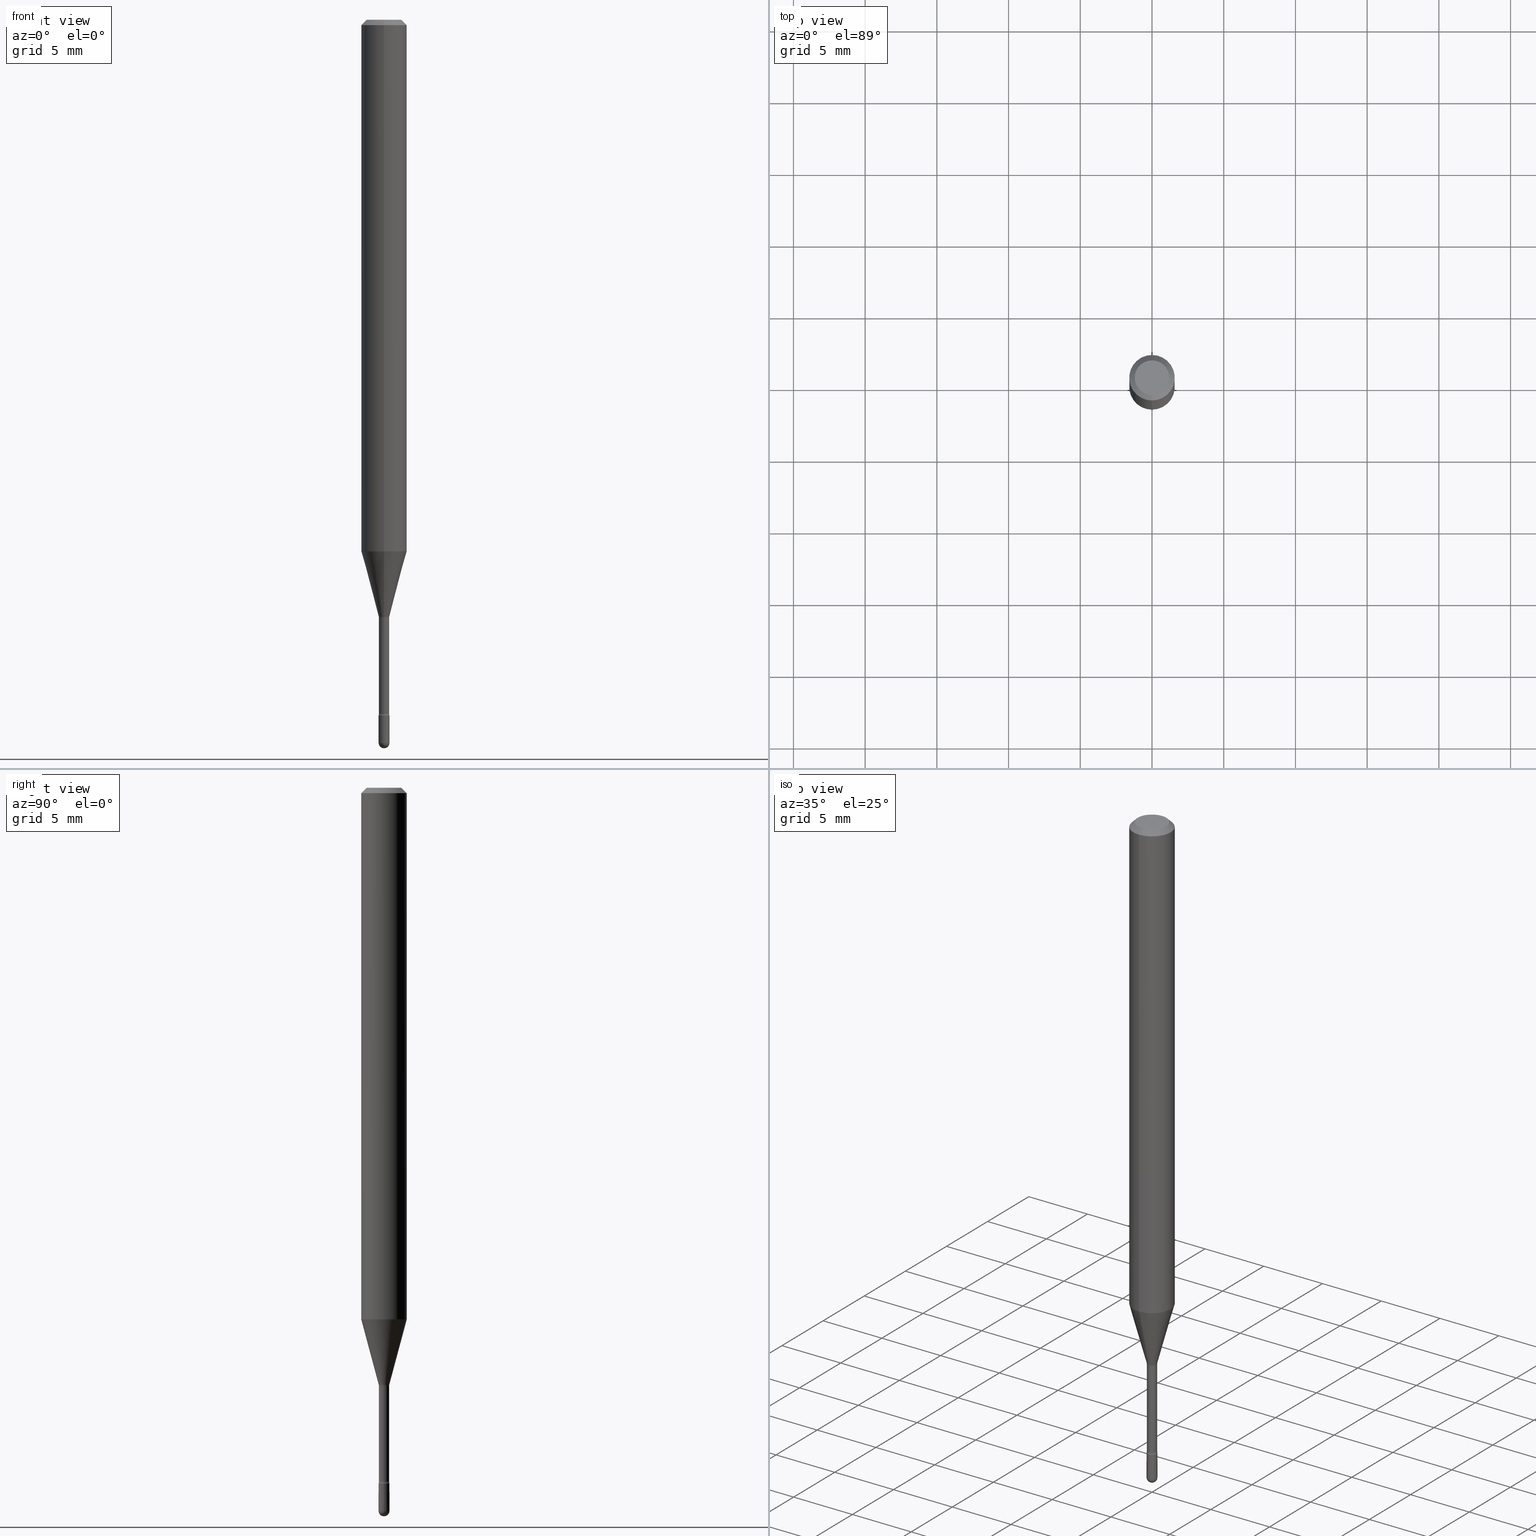
[diagram: canonical four-view strip — front | top / right | iso, engineering-drawing reading convention]
A machine part, canonical four-view strip (front | top / right | iso — engineering-drawing reading convention). The complete STEP part file that produces these views, byte-faithful:
ISO-10303-21;
HEADER;
FILE_DESCRIPTION (( 'STEP AP203' ),
    '1' );
FILE_NAME ('01615.STEP',
    '2024-04-09T20:09:42',
    ( '' ),
    ( '' ),
    'SwSTEP 2.0',
    'SolidWorks 2023',
    '' );
FILE_SCHEMA (( 'CONFIG_CONTROL_DESIGN' ));
ENDSEC;

DATA;
#1 = CARTESIAN_POINT ( 'NONE',  ( -1.169113584055446105E-44, 1.669184350826100908E-30, 4.780733988912460139E-16 ) ) ;
#2 = CARTESIAN_POINT ( 'NONE',  ( -1.047444401652473691E-16, -0.01500000000000668680, -1.910000000000000142 ) ) ;
#3 = DIRECTION ( 'NONE',  ( -2.445474320287489972E-29, 3.491473442334732541E-15, 1.000000000000000000 ) ) ;
#4 = DIRECTION ( 'NONE',  ( -2.445474320287489972E-29, 3.491473442334732541E-15, 1.000000000000000000 ) ) ;
#5 = ORIENTED_EDGE ( 'NONE', *, *, #413, .T. ) ;
#6 = CARTESIAN_POINT ( 'NONE',  ( 4.658330447976158571E-29, -6.650861294217740210E-15, -1.904882383367230370 ) ) ;
#7 = ORIENTED_EDGE ( 'NONE', *, *, #541, .T. ) ;
#8 = CARTESIAN_POINT ( 'NONE',  ( 1.047444401653407012E-16, 0.01499999999999333117, -1.910000000000000142 ) ) ;
#9 = AXIS2_PLACEMENT_3D ( 'NONE', #222, #393, #125 ) ;
#10 = DIRECTION ( 'NONE',  ( 1.000000000000000000, -6.982962677686265922E-15, 4.883557194083112340E-29 ) ) ;
#11 = CARTESIAN_POINT ( 'NONE',  ( 4.364351673553919652E-16, 0.06249999999999995143, -0.01500000000000030129 ) ) ;
#12 = DIRECTION ( 'NONE',  ( -2.445468806185136597E-29, 3.491481338843145583E-15, 1.000000000000000000 ) ) ;
#13 = CARTESIAN_POINT ( 'NONE',  ( 4.854255580277496997E-29, -6.930590457603645269E-15, -1.985000000000000320 ) ) ;
#14 = DIRECTION ( 'NONE',  ( -6.982962677686265922E-15, -1.000000000000000000, 3.491473442334735302E-15 ) ) ;
#15 = EDGE_CURVE ( 'NONE', #54, #159, #213, .T. ) ;
#16 = DIRECTION ( 'NONE',  ( -6.982962677686265922E-15, -1.000000000000000000, 3.491473442334732146E-15 ) ) ;
#17 = CONICAL_SURFACE ( 'NONE', #324, 0.06250000000000000000, 0.7853981633974483900 ) ;
#18 = DIRECTION ( 'NONE',  ( -6.982962677686265922E-15, -1.000000000000000000, 0.000000000000000000 ) ) ;
#19 = LINE ( 'NONE', #356, #322 ) ;
#20 = CARTESIAN_POINT ( 'NONE',  ( 4.015407177302259338E-29, -5.732911363413114048E-15, -1.641974787463811314 ) ) ;
#21 =( CONVERSION_BASED_UNIT ( 'INCH', #108 ) LENGTH_UNIT ( ) NAMED_UNIT ( #25 ) );
#22 = CARTESIAN_POINT ( 'NONE',  ( 0.01499999999999999944, -6.773473797355702060E-15, -1.910000000000000142 ) ) ;
#23 = ORIENTED_EDGE ( 'NONE', *, *, #314, .T. ) ;
#24 = EDGE_LOOP ( 'NONE', ( #172, #381 ) ) ;
#25 = DIMENSIONAL_EXPONENTS ( 1.000000000000000000, 0.000000000000000000, 0.000000000000000000, 0.000000000000000000, 0.000000000000000000, 0.000000000000000000, 0.000000000000000000 ) ;
#26 = CARTESIAN_POINT ( 'NONE',  ( 4.005913147376267210E-29, -5.719356466077926912E-15, -1.638092501787273614 ) ) ;
#27 = CIRCLE ( 'NONE', #438, 0.01409999999999999448 ) ;
#28 = CARTESIAN_POINT ( 'NONE',  ( 3.840629472727447874E-16, 0.04749999999999999362, -2.485923956665947867E-16 ) ) ;
#29 = PERSON_AND_ORGANIZATION ( #419, #376 ) ;
#30 = EDGE_CURVE ( 'NONE', #385, #559, #109, .T. ) ;
#31 = ORIENTED_EDGE ( 'NONE', *, *, #502, .T. ) ;
#32 = APPLICATION_PROTOCOL_DEFINITION ( 'international standard', 'config_control_design', 1994, #481 ) ;
#33 = CIRCLE ( 'NONE', #165, 0.01499999999999999944 ) ;
#34 = CIRCLE ( 'NONE', #61, 0.06250000000000000000 ) ;
#35 = DIRECTION ( 'NONE',  ( -6.982962677686265922E-15, -1.000000000000000000, 3.491473442334732146E-15 ) ) ;
#36 = COORDINATED_UNIVERSAL_TIME_OFFSET ( 5, 0, .BEHIND. ) ;
#37 = CARTESIAN_POINT ( 'NONE',  ( 4.854255580277496436E-29, -6.930590457603643692E-15, -1.985000000000000098 ) ) ;
#38 = CC_DESIGN_DATE_AND_TIME_ASSIGNMENT ( #422, #332, ( #130 ) ) ;
#39 = COORDINATED_UNIVERSAL_TIME_OFFSET ( 5, 0, .BEHIND. ) ;
#40 = DATE_TIME_ROLE ( 'creation_date' ) ;
#41 = CIRCLE ( 'NONE', #146, 0.01499999999999998730 ) ;
#42 = EDGE_LOOP ( 'NONE', ( #468, #521, #114, #428 ) ) ;
#43 = ADVANCED_FACE ( 'NONE', ( #188 ), #260, .T. ) ;
#44 = EDGE_LOOP ( 'NONE', ( #437, #505, #253, #210 ) ) ;
#45 = DIRECTION ( 'NONE',  ( 1.000000000000000000, -6.982962677686268288E-15, 0.000000000000000000 ) ) ;
#46 = FACE_OUTER_BOUND ( 'NONE', #84, .T. ) ;
#47 = ORIENTED_EDGE ( 'NONE', *, *, #142, .T. ) ;
#48 = ORIENTED_EDGE ( 'NONE', *, *, #195, .F. ) ;
#49 = VECTOR ( 'NONE', #460, 39.37007874015748143 ) ;
#50 = TOROIDAL_SURFACE ( 'NONE', #459, 0.02910000000000003903, 0.01500000000000003934 ) ;
#51 = ADVANCED_FACE ( 'NONE', ( #400 ), #128, .T. ) ;
#52 = LINE ( 'NONE', #467, #352 ) ;
#53 = VECTOR ( 'NONE', #201, 39.37007874015748854 ) ;
#54 = VERTEX_POINT ( 'NONE', #58 ) ;
#55 = ADVANCED_FACE ( 'NONE', ( #46 ), #401, .T. ) ;
#56 = CARTESIAN_POINT ( 'NONE',  ( 0.01499999999999999771, -1.047444401652939859E-16, 7.314265163693902638E-31 ) ) ;
#57 = CARTESIAN_POINT ( 'NONE',  ( -3.773273898774340269E-16, -0.04749999999999999362, 8.309758135520473464E-17 ) ) ;
#58 = CARTESIAN_POINT ( 'NONE',  ( -1.020288540047823140E-16, -0.01461111260566962632, -1.638092501787273614 ) ) ;
#59 = CIRCLE ( 'NONE', #286, 0.01499999999999998730 ) ;
#60 = CARTESIAN_POINT ( 'NONE',  ( -9.845977375532975906E-17, -0.01410000000000665062, -1.904882383367230370 ) ) ;
#61 = AXIS2_PLACEMENT_3D ( 'NONE', #317, #63, #105 ) ;
#62 = ORIENTED_EDGE ( 'NONE', *, *, #135, .T. ) ;
#63 = DIRECTION ( 'NONE',  ( -2.445474320287489972E-29, 3.491473442334732541E-15, 1.000000000000000000 ) ) ;
#64 = ORIENTED_EDGE ( 'NONE', *, *, #320, .F. ) ;
#65 = DIRECTION ( 'NONE',  ( -2.445474320287489972E-29, 3.491473442334732541E-15, 1.000000000000000000 ) ) ;
#66 = CARTESIAN_POINT ( 'NONE',  ( -1.020288540047823140E-16, -0.01461111260566962632, -1.638092501787273614 ) ) ;
#67 = CIRCLE ( 'NONE', #155, 0.01500000000000003587 ) ;
#68 = CC_DESIGN_SECURITY_CLASSIFICATION ( #130, ( #225 ) ) ;
#69 = EDGE_LOOP ( 'NONE', ( #209, #562 ) ) ;
#70 = VERTEX_POINT ( 'NONE', #444 ) ;
#71 = CALENDAR_DATE ( 2024, 9, 4 ) ;
#72 = APPROVAL ( #161, 'UNSPECIFIED' ) ;
#73 = EDGE_CURVE ( 'NONE', #520, #118, #529, .T. ) ;
#74 = CARTESIAN_POINT ( 'NONE',  ( 4.658340951692591124E-29, -6.650846252297974174E-15, -1.904882383367230370 ) ) ;
#75 = PERSON_AND_ORGANIZATION ( #419, #376 ) ;
#76 = AXIS2_PLACEMENT_3D ( 'NONE', #318, #141, #14 ) ;
#77 = AXIS2_PLACEMENT_3D ( 'NONE', #169, #4, #386 ) ;
#78 = CIRCLE ( 'NONE', #507, 0.01410000000000000142 ) ;
#79 = ADVANCED_FACE ( 'NONE', ( #485 ), #264, .T. ) ;
#80 = LINE ( 'NONE', #336, #49 ) ;
#81 = EDGE_LOOP ( 'NONE', ( #532, #417, #133, #282 ) ) ;
#82 = AXIS2_PLACEMENT_3D ( 'NONE', #1, #463, #35 ) ;
#83 = CARTESIAN_POINT ( 'NONE',  ( -2.032042139206240161E-16, -0.02910000000000668996, -1.904882383367230370 ) ) ;
#84 = EDGE_LOOP ( 'NONE', ( #31, #306, #129, #514, #397 ) ) ;
#85 = CARTESIAN_POINT ( 'NONE',  ( 4.670855951749106131E-29, -6.668714274859339263E-15, -1.910000000000000142 ) ) ;
#86 = DIRECTION ( 'NONE',  ( -6.982962677686265922E-15, -1.000000000000000000, 3.491473442334732541E-15 ) ) ;
#87 = LINE ( 'NONE', #11, #536 ) ;
#88 = EDGE_LOOP ( 'NONE', ( #247, #173, #442, #48 ) ) ;
#89 = CARTESIAN_POINT ( 'NONE',  ( 4.440892098500625669E-16, 0.06250000000000000000, 2.598563087453252794E-16 ) ) ;
#90 = DIRECTION ( 'NONE',  ( -2.445468806185136597E-29, 3.491481338843145583E-15, 1.000000000000000000 ) ) ;
#91 = CYLINDRICAL_SURFACE ( 'NONE', #77, 0.01409999999999999795 ) ;
#92 = DIRECTION ( 'NONE',  ( -6.982962677686266711E-15, -1.000000000000000000, 0.000000000000000000 ) ) ;
#93 = APPROVAL ( #154, 'UNSPECIFIED' ) ;
#94 = AXIS2_PLACEMENT_3D ( 'NONE', #20, #495, #95 ) ;
#95 = DIRECTION ( 'NONE',  ( -6.982962677686265133E-15, -1.000000000000000000, 0.000000000000000000 ) ) ;
#96 = CARTESIAN_POINT ( 'NONE',  ( 4.440892098500981149E-16, 0.06249999999999489991, -1.459368740913666862 ) ) ;
#97 =( NAMED_UNIT ( * ) PLANE_ANGLE_UNIT ( ) SI_UNIT ( $, .RADIAN. ) );
#98 = CARTESIAN_POINT ( 'NONE',  ( 4.854255580277496997E-29, -6.930590457603645269E-15, -1.985000000000000320 ) ) ;
#99 = EDGE_CURVE ( 'NONE', #259, #127, #19, .T. ) ;
#100 = AXIS2_PLACEMENT_3D ( 'NONE', #339, #519, #124 ) ;
#101 = DIRECTION ( 'NONE',  ( -2.445474320287489972E-29, 3.491473442334732541E-15, 1.000000000000000000 ) ) ;
#102 = AXIS2_PLACEMENT_3D ( 'NONE', #360, #542, #203 ) ;
#103 = CARTESIAN_POINT ( 'NONE',  ( 4.015407177302259338E-29, -5.732911363413114048E-15, -1.641974787463811314 ) ) ;
#104 = VERTEX_POINT ( 'NONE', #313 ) ;
#105 = DIRECTION ( 'NONE',  ( -6.982962677686265922E-15, -1.000000000000000000, 4.370956789862821150E-15 ) ) ;
#106 = EDGE_LOOP ( 'NONE', ( #416, #470, #304, #218 ) ) ;
#107 = UNCERTAINTY_MEASURE_WITH_UNIT (LENGTH_MEASURE( 1.000000000000000082E-05 ), #21, 'distance_accuracy_value', 'NONE');
#108 = LENGTH_MEASURE_WITH_UNIT ( LENGTH_MEASURE( 0.02539999999999999897 ), #234 );
#109 = CIRCLE ( 'NONE', #429, 0.01499999999999999944 ) ;
#110 = PERSON_AND_ORGANIZATION_ROLE ( 'creator' ) ;
#111 = AXIS2_PLACEMENT_3D ( 'NONE', #321, #353, #370 ) ;
#112 = EDGE_LOOP ( 'NONE', ( #177, #261, #5, #126, #241 ) ) ;
#113 = ADVANCED_FACE ( 'NONE', ( #489 ), #409, .T. ) ;
#114 = ORIENTED_EDGE ( 'NONE', *, *, #195, .T. ) ;
#115 = CYLINDRICAL_SURFACE ( 'NONE', #82, 0.06250000000000000000 ) ;
#116 = SECURITY_CLASSIFICATION_LEVEL ( 'unclassified' ) ;
#117 = PRODUCT_RELATED_PRODUCT_CATEGORY ( 'detail', '', ( #326 ) ) ;
#118 = VERTEX_POINT ( 'NONE', #22 ) ;
#119 = PERSON_AND_ORGANIZATION_ROLE ( 'design_owner' ) ;
#120 = CIRCLE ( 'NONE', #111, 0.01499999999999999771 ) ;
#121 = AXIS2_PLACEMENT_3D ( 'NONE', #452, #325, #272 ) ;
#122 = LOCAL_TIME ( 16, 9, 42.00000000000000000, #208 ) ;
#123 = EDGE_LOOP ( 'NONE', ( #348, #163, #64, #198 ) ) ;
#124 = DIRECTION ( 'NONE',  ( 1.000000000000000000, -6.982962677686269077E-15, 0.000000000000000000 ) ) ;
#125 = DIRECTION ( 'NONE',  ( -6.982962677686265922E-15, -1.000000000000000000, 3.483106191921935554E-15 ) ) ;
#126 = ORIENTED_EDGE ( 'NONE', *, *, #73, .T. ) ;
#127 = VERTEX_POINT ( 'NONE', #355 ) ;
#128 = CONICAL_SURFACE ( 'NONE', #276, 0.01461111260566390693, 0.2617993877991494078 ) ;
#129 = ORIENTED_EDGE ( 'NONE', *, *, #294, .F. ) ;
#130 = SECURITY_CLASSIFICATION ( '', '', #116 ) ;
#131 = ORIENTED_EDGE ( 'NONE', *, *, #517, .T. ) ;
#132 = LINE ( 'NONE', #89, #374 ) ;
#133 = ORIENTED_EDGE ( 'NONE', *, *, #15, .T. ) ;
#134 = DIRECTION ( 'NONE',  ( 4.937700262164548042E-15, 0.7071067811865451302, -0.7071067811865499042 ) ) ;
#135 = EDGE_CURVE ( 'NONE', #207, #159, #27, .T. ) ;
#136 = SPHERICAL_SURFACE ( 'NONE', #450, 0.01499999999999998730 ) ;
#137 = EDGE_LOOP ( 'NONE', ( #551, #249, #522, #224 ) ) ;
#138 = AXIS2_PLACEMENT_3D ( 'NONE', #160, #212, #383 ) ;
#139 = CARTESIAN_POINT ( 'NONE',  ( 3.668211480431254910E-31, -5.237210163502127580E-17, -0.01500000000000008271 ) ) ;
#140 = LINE ( 'NONE', #327, #346 ) ;
#141 = DIRECTION ( 'NONE',  ( -2.445474320287489972E-29, 3.491473442334732541E-15, 1.000000000000000000 ) ) ;
#142 = EDGE_CURVE ( 'NONE', #237, #207, #197, .T. ) ;
#143 = PLANE ( 'NONE',  #565 ) ;
#144 = DIRECTION ( 'NONE',  ( 1.839019923739594004E-15, 0.2588190451025240701, 0.9659258262890673130 ) ) ;
#145 = DIRECTION ( 'NONE',  ( -2.445468806185136877E-29, 3.491481338843145188E-15, 1.000000000000000000 ) ) ;
#146 = AXIS2_PLACEMENT_3D ( 'NONE', #37, #254, #432 ) ;
#147 = DIRECTION ( 'NONE',  ( -6.982962677686265922E-15, -1.000000000000000000, 3.483106191921935554E-15 ) ) ;
#148 = DIRECTION ( 'NONE',  ( 1.000000000000000000, -6.982962677686269077E-15, 0.000000000000000000 ) ) ;
#149 = ADVANCED_FACE ( 'NONE', ( #548 ), #50, .F. ) ;
#150 = DIRECTION ( 'NONE',  ( 1.000000000000000000, -6.982962677686265922E-15, 4.876176775795935793E-29 ) ) ;
#151 = ORIENTED_EDGE ( 'NONE', *, *, #15, .F. ) ;
#152 = DATE_AND_TIME ( #71, #166 ) ;
#153 = ORIENTED_EDGE ( 'NONE', *, *, #190, .F. ) ;
#154 = APPROVAL_STATUS ( 'not_yet_approved' ) ;
#155 = AXIS2_PLACEMENT_3D ( 'NONE', #83, #174, #342 ) ;
#156 = CC_DESIGN_APPROVAL ( #281, ( #202 ) ) ;
#157 = FACE_OUTER_BOUND ( 'NONE', #44, .T. ) ;
#158 = EDGE_CURVE ( 'NONE', #420, #492, #513, .T. ) ;
#159 = VERTEX_POINT ( 'NONE', #178 ) ;
#160 = CARTESIAN_POINT ( 'NONE',  ( 2.023592954152793151E-45, -2.889065993955518034E-31, -8.274740715569503836E-17 ) ) ;
#161 = APPROVAL_STATUS ( 'not_yet_approved' ) ;
#162 = ORIENTED_EDGE ( 'NONE', *, *, #509, .T. ) ;
#163 = ORIENTED_EDGE ( 'NONE', *, *, #176, .T. ) ;
#164 = DIRECTION ( 'NONE',  ( 0.000000000000000000, 0.000000000000000000, 1.000000000000000000 ) ) ;
#165 = AXIS2_PLACEMENT_3D ( 'NONE', #449, #90, #426 ) ;
#166 = LOCAL_TIME ( 16, 9, 42.00000000000000000, #206 ) ;
#167 = ADVANCED_FACE ( 'NONE', ( #399 ), #331, .F. ) ;
#168 = ORIENTED_EDGE ( 'NONE', *, *, #544, .T. ) ;
#169 = CARTESIAN_POINT ( 'NONE',  ( -1.169113584055446105E-44, 1.669184350826100908E-30, 4.780733988912460139E-16 ) ) ;
#170 = ADVANCED_BREP_SHAPE_REPRESENTATION ( '01615', ( #443, #251, #488 ), #465 ) ;
#171 = EDGE_CURVE ( 'NONE', #334, #301, #263, .T. ) ;
#172 = ORIENTED_EDGE ( 'NONE', *, *, #158, .T. ) ;
#173 = ORIENTED_EDGE ( 'NONE', *, *, #476, .T. ) ;
#174 = DIRECTION ( 'NONE',  ( -1.000000000000000000, 6.982962677686265922E-15, -4.883557194083112901E-29 ) ) ;
#175 = DIRECTION ( 'NONE',  ( -6.982962677686265922E-15, -1.000000000000000000, 3.491473442334732146E-15 ) ) ;
#176 = EDGE_CURVE ( 'NONE', #344, #104, #59, .T. ) ;
#177 = ORIENTED_EDGE ( 'NONE', *, *, #99, .F. ) ;
#178 = CARTESIAN_POINT ( 'NONE',  ( -9.845977375533614390E-17, -0.01410000000000572774, -1.641974787463811314 ) ) ;
#179 = CARTESIAN_POINT ( 'NONE',  ( 4.440892098500985093E-16, 0.06249999999999995143, -0.01500000000000030129 ) ) ;
#180 = VECTOR ( 'NONE', #189, 39.37007874015748143 ) ;
#181 = CIRCLE ( 'NONE', #557, 0.01499999999999999771 ) ;
#182 = LOCAL_TIME ( 16, 9, 42.00000000000000000, #338 ) ;
#183 = CARTESIAN_POINT ( 'NONE',  ( 4.015398123285219661E-29, -5.732924329280836621E-15, -1.641974787463811314 ) ) ;
#184 = EDGE_CURVE ( 'NONE', #259, #343, #181, .T. ) ;
#185 = DIRECTION ( 'NONE',  ( 1.000000000000000000, -6.982962677686266711E-15, 4.876176775795935793E-29 ) ) ;
#186 = LINE ( 'NONE', #407, #430 ) ;
#187 = FACE_OUTER_BOUND ( 'NONE', #137, .T. ) ;
#188 = FACE_OUTER_BOUND ( 'NONE', #405, .T. ) ;
#189 = DIRECTION ( 'NONE',  ( -2.445468806185136877E-29, 3.491481338843145188E-15, 1.000000000000000000 ) ) ;
#190 = EDGE_CURVE ( 'NONE', #559, #385, #337, .T. ) ;
#191 = AXIS2_PLACEMENT_3D ( 'NONE', #183, #262, #347 ) ;
#192 = CIRCLE ( 'NONE', #121, 0.01500000000000003587 ) ;
#193 = DIRECTION ( 'NONE',  ( 2.445474320287489412E-29, -3.491473442334732541E-15, -1.000000000000000000 ) ) ;
#194 = DIRECTION ( 'NONE',  ( -1.000000000000000000, 6.982962677686265922E-15, -4.883557194083112901E-29 ) ) ;
#195 = EDGE_CURVE ( 'NONE', #471, #385, #67, .T. ) ;
#196 = CARTESIAN_POINT ( 'NONE',  ( 4.658340951692591124E-29, -6.650846252297974174E-15, -1.904882383367230370 ) ) ;
#197 = LINE ( 'NONE', #453, #312 ) ;
#198 = ORIENTED_EDGE ( 'NONE', *, *, #413, .F. ) ;
#199 = DIRECTION ( 'NONE',  ( 2.445474320287489972E-29, -3.491473442334732541E-15, -1.000000000000000000 ) ) ;
#200 = AXIS2_PLACEMENT_3D ( 'NONE', #440, #3, #387 ) ;
#201 = DIRECTION ( 'NONE',  ( -1.807323732225323828E-15, -0.2588190451025172978, 0.9659258262890690894 ) ) ;
#202 = PRODUCT_DEFINITION ( 'UNKNOWN', '', #225, #359 ) ;
#203 = DIRECTION ( 'NONE',  ( -6.982962677686265922E-15, -1.000000000000000000, 0.000000000000000000 ) ) ;
#204 = FACE_OUTER_BOUND ( 'NONE', #543, .T. ) ;
#205 = PERSON_AND_ORGANIZATION_ROLE ( 'creator' ) ;
#206 = COORDINATED_UNIVERSAL_TIME_OFFSET ( 5, 0, .BEHIND. ) ;
#207 = VERTEX_POINT ( 'NONE', #531 ) ;
#208 = COORDINATED_UNIVERSAL_TIME_OFFSET ( 5, 0, .BEHIND. ) ;
#209 = ORIENTED_EDGE ( 'NONE', *, *, #294, .T. ) ;
#210 = ORIENTED_EDGE ( 'NONE', *, *, #171, .F. ) ;
#211 = EDGE_CURVE ( 'NONE', #127, #118, #223, .T. ) ;
#212 = DIRECTION ( 'NONE',  ( -2.445474320287489972E-29, 3.491473442334732541E-15, 1.000000000000000000 ) ) ;
#213 = CIRCLE ( 'NONE', #535, 0.01500000000000002373 ) ;
#214 = CC_DESIGN_PERSON_AND_ORGANIZATION_ASSIGNMENT ( #29, #205, ( #225 ) ) ;
#215 = AXIS2_PLACEMENT_3D ( 'NONE', #8, #220, #390 ) ;
#216 = CIRCLE ( 'NONE', #233, 0.06250000000000000000 ) ;
#217 = ORIENTED_EDGE ( 'NONE', *, *, #454, .F. ) ;
#218 = ORIENTED_EDGE ( 'NONE', *, *, #357, .F. ) ;
#219 = DIRECTION ( 'NONE',  ( -2.445474320287489972E-29, 3.491473442334732541E-15, 1.000000000000000000 ) ) ;
#220 = DIRECTION ( 'NONE',  ( -2.445474320287489412E-29, 3.491473442334732541E-15, 1.000000000000000000 ) ) ;
#221 = EDGE_CURVE ( 'NONE', #70, #207, #232, .T. ) ;
#222 = CARTESIAN_POINT ( 'NONE',  ( 3.668211480431254910E-31, -5.237210163502127580E-17, -0.01500000000000008271 ) ) ;
#223 = CIRCLE ( 'NONE', #296, 0.01499999999999999944 ) ;
#224 = ORIENTED_EDGE ( 'NONE', *, *, #171, .T. ) ;
#225 = PRODUCT_DEFINITION_FORMATION_WITH_SPECIFIED_SOURCE ( 'ANY', '', #326, .NOT_KNOWN. ) ;
#226 = DIRECTION ( 'NONE',  ( 6.982962677686265922E-15, 1.000000000000000000, 0.000000000000000000 ) ) ;
#227 = EDGE_CURVE ( 'NONE', #525, #301, #52, .T. ) ;
#228 = ORIENTED_EDGE ( 'NONE', *, *, #494, .F. ) ;
#229 = CARTESIAN_POINT ( 'NONE',  ( 3.316907271900976096E-16, 0.04749999999999999362, 3.181800735687577025E-17 ) ) ;
#230 = CARTESIAN_POINT ( 'NONE',  ( 4.854255580277496436E-29, -6.930590457603643692E-15, -1.985000000000000098 ) ) ;
#231 = CC_DESIGN_DATE_AND_TIME_ASSIGNMENT ( #424, #40, ( #202 ) ) ;
#232 = CIRCLE ( 'NONE', #239, 0.01500000000000002373 ) ;
#233 = AXIS2_PLACEMENT_3D ( 'NONE', #447, #240, #504 ) ;
#234 =( LENGTH_UNIT ( ) NAMED_UNIT ( * ) SI_UNIT ( $, .METRE. ) );
#235 = ADVANCED_FACE ( 'NONE', ( #518 ), #552, .T. ) ;
#236 = CYLINDRICAL_SURFACE ( 'NONE', #288, 0.01499999999999999771 ) ;
#237 = VERTEX_POINT ( 'NONE', #368 ) ;
#238 = DIRECTION ( 'NONE',  ( 6.982962677686265922E-15, 1.000000000000000000, -3.483106191921935554E-15 ) ) ;
#239 = AXIS2_PLACEMENT_3D ( 'NONE', #349, #307, #436 ) ;
#240 = DIRECTION ( 'NONE',  ( -2.445474320287489972E-29, 3.491473442334732541E-15, 1.000000000000000000 ) ) ;
#241 = ORIENTED_EDGE ( 'NONE', *, *, #211, .F. ) ;
#242 = APPROVAL_DATE_TIME ( #152, #72 ) ;
#243 = ADVANCED_FACE ( 'NONE', ( #283 ), #136, .T. ) ;
#244 = CARTESIAN_POINT ( 'NONE',  ( -4.364351673553912750E-16, -0.06250000000000005551, -0.01499999999999986587 ) ) ;
#245 = APPLICATION_PROTOCOL_DEFINITION ( 'international standard', 'config_control_design', 1994, #391 ) ;
#246 = CIRCLE ( 'NONE', #100, 0.01499999999999999771 ) ;
#247 = ORIENTED_EDGE ( 'NONE', *, *, #314, .F. ) ;
#248 = PERSON_AND_ORGANIZATION ( #419, #376 ) ;
#249 = ORIENTED_EDGE ( 'NONE', *, *, #158, .F. ) ;
#250 = DIRECTION ( 'NONE',  ( -6.982962677686265922E-15, -1.000000000000000000, 0.000000000000000000 ) ) ;
#251 = MANIFOLD_SOLID_BREP ( 'Body-Move/Copy2[2]', #382 ) ;
#252 = CIRCLE ( 'NONE', #539, 0.01461111260566390693 ) ;
#253 = ORIENTED_EDGE ( 'NONE', *, *, #227, .T. ) ;
#254 = DIRECTION ( 'NONE',  ( -1.000000000000000000, 7.105427357601001070E-15, -4.926315508542082329E-29 ) ) ;
#255 = CARTESIAN_POINT ( 'NONE',  ( 4.658330447976158571E-29, -6.650861294217740210E-15, -1.904882383367230370 ) ) ;
#256 = ADVANCED_FACE ( 'NONE', ( #445 ), #323, .F. ) ;
#257 = ORIENTED_EDGE ( 'NONE', *, *, #462, .F. ) ;
#258 = DIRECTION ( 'NONE',  ( -2.445474320287489692E-29, 3.491473442334732541E-15, 1.000000000000000000 ) ) ;
#259 = VERTEX_POINT ( 'NONE', #396 ) ;
#260 = CYLINDRICAL_SURFACE ( 'NONE', #556, 0.06250000000000000000 ) ;
#261 = ORIENTED_EDGE ( 'NONE', *, *, #184, .T. ) ;
#262 = DIRECTION ( 'NONE',  ( -2.445474320287489972E-29, 3.491473442334732541E-15, 1.000000000000000000 ) ) ;
#263 = CIRCLE ( 'NONE', #9, 0.06250000000000000000 ) ;
#264 = CYLINDRICAL_SURFACE ( 'NONE', #76, 0.01409999999999999795 ) ;
#265 = DIRECTION ( 'NONE',  ( 6.982962677686265922E-15, 1.000000000000000000, 0.000000000000000000 ) ) ;
#266 = EDGE_LOOP ( 'NONE', ( #508, #472, #515, #546 ) ) ;
#267 = EDGE_CURVE ( 'NONE', #290, #334, #132, .T. ) ;
#268 = ORIENTED_EDGE ( 'NONE', *, *, #526, .F. ) ;
#269 = CARTESIAN_POINT ( 'NONE',  ( -1.169113584055446105E-44, 1.669184350826100908E-30, 4.780733988912460139E-16 ) ) ;
#270 = ADVANCED_FACE ( 'NONE', ( #187 ), #345, .T. ) ;
#271 = DIRECTION ( 'NONE',  ( -6.982962677686265922E-15, -1.000000000000000000, 0.000000000000000000 ) ) ;
#272 = DIRECTION ( 'NONE',  ( 7.105427357601000281E-15, 1.000000000000000000, 0.000000000000000000 ) ) ;
#273 = DIRECTION ( 'NONE',  ( -2.445474320287489972E-29, 3.491473442334732541E-15, 1.000000000000000000 ) ) ;
#274 = DIRECTION ( 'NONE',  ( -2.445474320287489972E-29, 3.491473442334732541E-15, 1.000000000000000000 ) ) ;
#275 = EDGE_CURVE ( 'NONE', #159, #207, #277, .T. ) ;
#276 = AXIS2_PLACEMENT_3D ( 'NONE', #434, #395, #351 ) ;
#277 = CIRCLE ( 'NONE', #94, 0.01409999999999999448 ) ;
#278 = AXIS2_PLACEMENT_3D ( 'NONE', #545, #101, #147 ) ;
#279 = DIRECTION ( 'NONE',  ( -6.982962677686265922E-15, -1.000000000000000000, 0.000000000000000000 ) ) ;
#280 = DIRECTION ( 'NONE',  ( -6.982962677686265133E-15, -1.000000000000000000, 0.000000000000000000 ) ) ;
#281 = APPROVAL ( #512, 'UNSPECIFIED' ) ;
#282 = ORIENTED_EDGE ( 'NONE', *, *, #275, .T. ) ;
#283 = FACE_OUTER_BOUND ( 'NONE', #266, .T. ) ;
#284 = CARTESIAN_POINT ( 'NONE',  ( 3.668211480431254910E-31, -5.237210163502127580E-17, -0.01500000000000008271 ) ) ;
#285 = EDGE_LOOP ( 'NONE', ( #131, #7, #299, #268 ) ) ;
#286 = AXIS2_PLACEMENT_3D ( 'NONE', #483, #10, #226 ) ;
#287 = ORIENTED_EDGE ( 'NONE', *, *, #541, .F. ) ;
#288 = AXIS2_PLACEMENT_3D ( 'NONE', #402, #404, #315 ) ;
#289 = CALENDAR_DATE ( 2024, 9, 4 ) ;
#290 = VERTEX_POINT ( 'NONE', #96 ) ;
#291 = APPROVAL_DATE_TIME ( #335, #93 ) ;
#292 = ADVANCED_FACE ( 'NONE', ( #446 ), #143, .F. ) ;
#293 = APPROVAL_ROLE ( '' ) ;
#294 = EDGE_CURVE ( 'NONE', #118, #127, #33, .T. ) ;
#295 = FACE_OUTER_BOUND ( 'NONE', #477, .T. ) ;
#296 = AXIS2_PLACEMENT_3D ( 'NONE', #389, #523, #45 ) ;
#297 = AXIS2_PLACEMENT_3D ( 'NONE', #98, #412, #148 ) ;
#298 = CC_DESIGN_PERSON_AND_ORGANIZATION_ASSIGNMENT ( #561, #466, ( #130 ) ) ;
#299 = ORIENTED_EDGE ( 'NONE', *, *, #544, .F. ) ;
#300 = CALENDAR_DATE ( 2024, 9, 4 ) ;
#301 = VERTEX_POINT ( 'NONE', #244 ) ;
#302 = ADVANCED_FACE ( 'NONE', ( #157 ), #115, .T. ) ;
#303 = AXIS2_PLACEMENT_3D ( 'NONE', #74, #378, #560 ) ;
#304 = ORIENTED_EDGE ( 'NONE', *, *, #462, .T. ) ;
#305 = PLANE ( 'NONE',  #215 ) ;
#306 = ORIENTED_EDGE ( 'NONE', *, *, #99, .T. ) ;
#307 = DIRECTION ( 'NONE',  ( 1.000000000000000000, -7.105427357601001070E-15, 4.926315411837744950E-29 ) ) ;
#308 = DIRECTION ( 'NONE',  ( 6.982962677686265922E-15, 1.000000000000000000, -3.483106191921935554E-15 ) ) ;
#309 = CARTESIAN_POINT ( 'NONE',  ( 4.854255580277496436E-29, -6.930590457603643692E-15, -1.985000000000000098 ) ) ;
#310 = DIRECTION ( 'NONE',  ( -2.445474320287489692E-29, 3.491473442334732541E-15, 1.000000000000000000 ) ) ;
#311 = DIRECTION ( 'NONE',  ( 1.000000000000000000, -6.982962677686269077E-15, 0.000000000000000000 ) ) ;
#312 = VECTOR ( 'NONE', #361, 39.37007874015748143 ) ;
#313 = CARTESIAN_POINT ( 'NONE',  ( 1.047444401653424885E-16, 0.01499999999999306229, -1.985000000000000320 ) ) ;
#314 = EDGE_CURVE ( 'NONE', #237, #471, #499, .T. ) ;
#315 = DIRECTION ( 'NONE',  ( 1.000000000000000000, -6.982962677686266711E-15, 4.876176775795935793E-29 ) ) ;
#316 = EDGE_CURVE ( 'NONE', #492, #420, #384, .T. ) ;
#317 = CARTESIAN_POINT ( 'NONE',  ( 3.568848779734659217E-29, -5.095347201473544017E-15, -1.459368740913666640 ) ) ;
#318 = CARTESIAN_POINT ( 'NONE',  ( -1.169113584055446105E-44, 1.669184350826100908E-30, 4.780733988912460139E-16 ) ) ;
#319 = ORIENTED_EDGE ( 'NONE', *, *, #30, .F. ) ;
#320 = EDGE_CURVE ( 'NONE', #520, #104, #246, .T. ) ;
#321 = CARTESIAN_POINT ( 'NONE',  ( 4.854255580277496997E-29, -6.930590457603645269E-15, -1.985000000000000320 ) ) ;
#322 = VECTOR ( 'NONE', #145, 39.37007874015748143 ) ;
#323 = TOROIDAL_SURFACE ( 'NONE', #191, 0.02909999999999999740, 0.01500000000000002373 ) ;
#324 = AXIS2_PLACEMENT_3D ( 'NONE', #284, #199, #238 ) ;
#325 = DIRECTION ( 'NONE',  ( 1.000000000000000000, -7.105427357601001070E-15, 4.926315411837744950E-29 ) ) ;
#326 = PRODUCT ( '01615', '01615', '', ( #369 ) ) ;
#327 = CARTESIAN_POINT ( 'NONE',  ( 1.038181992333132303E-16, 0.01461111260565818581, -1.638092501787273614 ) ) ;
#328 = PERSON_AND_ORGANIZATION_ROLE ( 'design_supplier' ) ;
#329 = ORIENTED_EDGE ( 'NONE', *, *, #227, .F. ) ;
#330 = CC_DESIGN_PERSON_AND_ORGANIZATION_ASSIGNMENT ( #555, #328, ( #225 ) ) ;
#331 = TOROIDAL_SURFACE ( 'NONE', #487, 0.02910000000000003903, 0.01500000000000003934 ) ;
#332 = DATE_TIME_ROLE ( 'classification_date' ) ;
#333 = ADVANCED_FACE ( 'NONE', ( #204 ), #305, .F. ) ;
#334 = VERTEX_POINT ( 'NONE', #179 ) ;
#335 = DATE_AND_TIME ( #516, #182 ) ;
#336 = CARTESIAN_POINT ( 'NONE',  ( -9.845977375537633883E-17, -0.01409999999999999795, 5.273031744281658030E-16 ) ) ;
#337 = CIRCLE ( 'NONE', #473, 0.01499999999999999944 ) ;
#338 = COORDINATED_UNIVERSAL_TIME_OFFSET ( 5, 0, .BEHIND. ) ;
#339 = CARTESIAN_POINT ( 'NONE',  ( 4.854255580277496997E-29, -6.930590457603645269E-15, -1.985000000000000320 ) ) ;
#340 = FACE_OUTER_BOUND ( 'NONE', #123, .T. ) ;
#341 = ORIENTED_EDGE ( 'NONE', *, *, #526, .T. ) ;
#342 = DIRECTION ( 'NONE',  ( -6.982962677686268288E-15, -1.000000000000000000, 0.000000000000000000 ) ) ;
#343 = VERTEX_POINT ( 'NONE', #528 ) ;
#344 = VERTEX_POINT ( 'NONE', #480 ) ;
#345 = CONICAL_SURFACE ( 'NONE', #364, 0.06250000000000000000, 0.7853981633974483900 ) ;
#346 = VECTOR ( 'NONE', #144, 39.37007874015748854 ) ;
#347 = DIRECTION ( 'NONE',  ( -6.982962677686265922E-15, -1.000000000000000000, 3.491473442334732146E-15 ) ) ;
#348 = ORIENTED_EDGE ( 'NONE', *, *, #379, .F. ) ;
#349 = CARTESIAN_POINT ( 'NONE',  ( 2.067679361062292442E-16, 0.02909999999999426240, -1.641974787463811314 ) ) ;
#350 = DIRECTION ( 'NONE',  ( -2.445474320287489972E-29, 3.491473442334732541E-15, 1.000000000000000000 ) ) ;
#351 = DIRECTION ( 'NONE',  ( -6.982962677686265922E-15, -1.000000000000000000, 0.000000000000000000 ) ) ;
#352 = VECTOR ( 'NONE', #258, 39.37007874015748143 ) ;
#353 = DIRECTION ( 'NONE',  ( -2.445468806185136597E-29, 3.491481338843145583E-15, 1.000000000000000000 ) ) ;
#354 = CIRCLE ( 'NONE', #278, 0.06250000000000000000 ) ;
#355 = CARTESIAN_POINT ( 'NONE',  ( -0.01500000000000000291, -6.693078497033011857E-15, -1.910000000000000142 ) ) ;
#356 = CARTESIAN_POINT ( 'NONE',  ( -0.01499999999999999771, 1.065814103640150116E-16, -7.378402635382356781E-31 ) ) ;
#357 = EDGE_CURVE ( 'NONE', #420, #334, #87, .T. ) ;
#358 = DIRECTION ( 'NONE',  ( -4.851104656540964275E-15, -0.7071067811865500152, -0.7071067811865450192 ) ) ;
#359 = DESIGN_CONTEXT ( 'detailed design', #481, 'design' ) ;
#360 = CARTESIAN_POINT ( 'NONE',  ( 4.005913147376267210E-29, -5.719356466077926912E-15, -1.638092501787273614 ) ) ;
#361 = DIRECTION ( 'NONE',  ( -2.445474320287489692E-29, 3.491473442334732541E-15, 1.000000000000000000 ) ) ;
#362 = AXIS2_PLACEMENT_3D ( 'NONE', #563, #425, #175 ) ;
#363 = ORIENTED_EDGE ( 'NONE', *, *, #275, .F. ) ;
#364 = AXIS2_PLACEMENT_3D ( 'NONE', #139, #527, #308 ) ;
#365 = CC_DESIGN_APPROVAL ( #93, ( #130 ) ) ;
#366 = CARTESIAN_POINT ( 'NONE',  ( 1.065814103640618379E-16, 0.01499999999999334678, -1.910000000000000142 ) ) ;
#367 = ADVANCED_FACE ( 'NONE', ( #484 ), #91, .T. ) ;
#368 = CARTESIAN_POINT ( 'NONE',  ( 1.033839680531413201E-16, 0.01409999999999335049, -1.904882383367230370 ) ) ;
#369 = MECHANICAL_CONTEXT ( 'NONE', #391, 'mechanical' ) ;
#370 = DIRECTION ( 'NONE',  ( 1.000000000000000000, -6.982962677686269077E-15, 0.000000000000000000 ) ) ;
#371 = EDGE_CURVE ( 'NONE', #471, #159, #80, .T. ) ;
#372 = CALENDAR_DATE ( 2024, 9, 4 ) ;
#373 = AXIS2_PLACEMENT_3D ( 'NONE', #534, #12, #185 ) ;
#374 = VECTOR ( 'NONE', #310, 39.37007874015748143 ) ;
#375 = ADVANCED_FACE ( 'NONE', ( #295 ), #549, .F. ) ;
#376 = ORGANIZATION ( 'UNSPECIFIED', 'UNSPECIFIED', '' ) ;
#377 = ORIENTED_EDGE ( 'NONE', *, *, #371, .T. ) ;
#378 = DIRECTION ( 'NONE',  ( -2.445474320287489972E-29, 3.491473442334732541E-15, 1.000000000000000000 ) ) ;
#379 = EDGE_CURVE ( 'NONE', #344, #343, #41, .T. ) ;
#380 = PERSON_AND_ORGANIZATION ( #419, #376 ) ;
#381 = ORIENTED_EDGE ( 'NONE', *, *, #316, .T. ) ;
#382 = CLOSED_SHELL ( 'NONE', ( #375, #367, #149, #431, #43, #113, #51, #302, #270, #292, #333, #167, #79, #256 ) ) ;
#383 = DIRECTION ( 'NONE',  ( -6.982962677686266711E-15, -1.000000000000000000, 3.491473442334732541E-15 ) ) ;
#384 = CIRCLE ( 'NONE', #138, 0.04749999999999999362 ) ;
#385 = VERTEX_POINT ( 'NONE', #2 ) ;
#386 = DIRECTION ( 'NONE',  ( -6.982962677686265922E-15, -1.000000000000000000, 3.491473442334735302E-15 ) ) ;
#387 = DIRECTION ( 'NONE',  ( -6.982962677686266711E-15, -1.000000000000000000, 3.491473442334732541E-15 ) ) ;
#388 = ADVANCED_FACE ( 'NONE', ( #340 ), #448, .T. ) ;
#389 = CARTESIAN_POINT ( 'NONE',  ( 4.670845419813611528E-29, -6.668729357190407901E-15, -1.910000000000000142 ) ) ;
#390 = DIRECTION ( 'NONE',  ( -6.982962677686265922E-15, -1.000000000000000000, 3.491473442334732541E-15 ) ) ;
#391 = APPLICATION_CONTEXT ( 'configuration controlled 3d designs of mechanical parts and assemblies' ) ;
#392 = AXIS2_PLACEMENT_3D ( 'NONE', #498, #491, #18 ) ;
#393 = DIRECTION ( 'NONE',  ( -2.445474320287489972E-29, 3.491473442334732541E-15, 1.000000000000000000 ) ) ;
#394 = CIRCLE ( 'NONE', #102, 0.01461111260566390693 ) ;
#395 = DIRECTION ( 'NONE',  ( -2.445474320287489972E-29, 3.491473442334732541E-15, 1.000000000000000000 ) ) ;
#396 = CARTESIAN_POINT ( 'NONE',  ( -0.01499999999999999771, -6.693078497033011857E-15, -1.985000000000000320 ) ) ;
#397 = ORIENTED_EDGE ( 'NONE', *, *, #320, .T. ) ;
#398 = CC_DESIGN_PERSON_AND_ORGANIZATION_ASSIGNMENT ( #418, #119, ( #326 ) ) ;
#399 = FACE_OUTER_BOUND ( 'NONE', #42, .T. ) ;
#400 = FACE_OUTER_BOUND ( 'NONE', #496, .T. ) ;
#401 = CYLINDRICAL_SURFACE ( 'NONE', #373, 0.01499999999999999771 ) ;
#402 = CARTESIAN_POINT ( 'NONE',  ( 0.000000000000000000, 0.000000000000000000, 0.000000000000000000 ) ) ;
#403 = DIRECTION ( 'NONE',  ( 6.982962677686265922E-15, 1.000000000000000000, 0.000000000000000000 ) ) ;
#404 = DIRECTION ( 'NONE',  ( -2.445468806185136597E-29, 3.491481338843145583E-15, 1.000000000000000000 ) ) ;
#405 = EDGE_LOOP ( 'NONE', ( #168, #482, #257, #329 ) ) ;
#406 = CARTESIAN_POINT ( 'NONE',  ( -4.364351673553560228E-16, -0.06250000000000510703, -1.459368740913666196 ) ) ;
#407 = CARTESIAN_POINT ( 'NONE',  ( -4.287811248607203282E-16, -0.06250000000000005551, -0.01499999999999986587 ) ) ;
#408 = CLOSED_SHELL ( 'NONE', ( #55, #243, #235, #388, #564 ) ) ;
#409 = CONICAL_SURFACE ( 'NONE', #392, 0.01461111260566390693, 0.2617993877991494078 ) ;
#410 = ORIENTED_EDGE ( 'NONE', *, *, #454, .T. ) ;
#411 = LOCAL_TIME ( 16, 9, 42.00000000000000000, #36 ) ;
#412 = DIRECTION ( 'NONE',  ( -2.445468806185136597E-29, 3.491481338843145583E-15, 1.000000000000000000 ) ) ;
#413 = EDGE_CURVE ( 'NONE', #343, #520, #120, .T. ) ;
#414 = DIRECTION ( 'NONE',  ( 1.000000000000000000, 0.000000000000000000, 0.000000000000000000 ) ) ;
#415 = EDGE_CURVE ( 'NONE', #492, #301, #186, .T. ) ;
#416 = ORIENTED_EDGE ( 'NONE', *, *, #316, .F. ) ;
#417 = ORIENTED_EDGE ( 'NONE', *, *, #517, .F. ) ;
#418 = PERSON_AND_ORGANIZATION ( #419, #376 ) ;
#419 = PERSON ( 'UNSPECIFIED', 'UNSPECIFIED', 'UNSPECIFIED', ('UNSPECIFIED'), ('UNSPECIFIED'), ('UNSPECIFIED') ) ;
#420 = VERTEX_POINT ( 'NONE', #28 ) ;
#421 = AXIS2_PLACEMENT_3D ( 'NONE', #503, #456, #150 ) ;
#422 = DATE_AND_TIME ( #289, #451 ) ;
#423 = CARTESIAN_POINT ( 'NONE',  ( -2.032042139206301791E-16, -0.02910000000000572892, -1.641974787463811314 ) ) ;
#424 = DATE_AND_TIME ( #372, #122 ) ;
#425 = DIRECTION ( 'NONE',  ( -2.445474320287489972E-29, 3.491473442334732541E-15, 1.000000000000000000 ) ) ;
#426 = DIRECTION ( 'NONE',  ( 1.000000000000000000, -6.982962677686268288E-15, 0.000000000000000000 ) ) ;
#427 = APPROVAL_ROLE ( '' ) ;
#428 = ORIENTED_EDGE ( 'NONE', *, *, #30, .T. ) ;
#429 = AXIS2_PLACEMENT_3D ( 'NONE', #540, #350, #271 ) ;
#430 = VECTOR ( 'NONE', #358, 39.37007874015748143 ) ;
#431 = ADVANCED_FACE ( 'NONE', ( #497 ), #17, .T. ) ;
#432 = DIRECTION ( 'NONE',  ( -7.105427357601001070E-15, -1.000000000000000000, 0.000000000000000000 ) ) ;
#433 = DIRECTION ( 'NONE',  ( -6.982962677686265922E-15, -1.000000000000000000, 3.491473442334732541E-15 ) ) ;
#434 = CARTESIAN_POINT ( 'NONE',  ( 4.005913147376267210E-29, -5.719356466077926912E-15, -1.638092501787273614 ) ) ;
#435 = CC_DESIGN_PERSON_AND_ORGANIZATION_ASSIGNMENT ( #248, #110, ( #202 ) ) ;
#436 = DIRECTION ( 'NONE',  ( 7.105427357601001859E-15, 1.000000000000000000, 0.000000000000000000 ) ) ;
#437 = ORIENTED_EDGE ( 'NONE', *, *, #267, .F. ) ;
#438 = AXIS2_PLACEMENT_3D ( 'NONE', #103, #273, #280 ) ;
#439 = APPROVAL_PERSON_ORGANIZATION ( #75, #93, #506 ) ;
#440 = CARTESIAN_POINT ( 'NONE',  ( 2.023592954152793151E-45, -2.889065993955518034E-31, -8.274740715569503836E-17 ) ) ;
#441 = APPROVAL_PERSON_ORGANIZATION ( #380, #72, #427 ) ;
#442 = ORIENTED_EDGE ( 'NONE', *, *, #190, .T. ) ;
#443 = MANIFOLD_SOLID_BREP ( 'Body-Move/Copy2[1]', #408 ) ;
#444 = CARTESIAN_POINT ( 'NONE',  ( 2.739537045417059006E-16, 0.01461111260565818581, -1.638092501787273614 ) ) ;
#445 = FACE_OUTER_BOUND ( 'NONE', #81, .T. ) ;
#446 = FACE_OUTER_BOUND ( 'NONE', #24, .T. ) ;
#447 = CARTESIAN_POINT ( 'NONE',  ( 3.568848779734659217E-29, -5.095347201473544017E-15, -1.459368740913666640 ) ) ;
#448 = SPHERICAL_SURFACE ( 'NONE', #464, 0.01499999999999998730 ) ;
#449 = CARTESIAN_POINT ( 'NONE',  ( 4.670845419813611528E-29, -6.668729357190407901E-15, -1.910000000000000142 ) ) ;
#450 = AXIS2_PLACEMENT_3D ( 'NONE', #309, #486, #265 ) ;
#451 = LOCAL_TIME ( 16, 9, 42.00000000000000000, #39 ) ;
#452 = CARTESIAN_POINT ( 'NONE',  ( 2.067679361062359989E-16, 0.02909999999999338810, -1.904882383367230370 ) ) ;
#453 = CARTESIAN_POINT ( 'NONE',  ( 1.001865257421740993E-16, 0.01409999999999999795, 4.288436233543263234E-16 ) ) ;
#454 = EDGE_CURVE ( 'NONE', #70, #54, #252, .T. ) ;
#455 = DIRECTION ( 'NONE',  ( -6.982962677686265133E-15, -1.000000000000000000, 0.000000000000000000 ) ) ;
#456 = DIRECTION ( 'NONE',  ( -2.438088387897960049E-29, 3.491481338843145188E-15, 1.000000000000000000 ) ) ;
#457 = PRODUCT_DEFINITION_SHAPE ( 'NONE', 'NONE',  #202 ) ;
#458 =( NAMED_UNIT ( * ) SI_UNIT ( $, .STERADIAN. ) SOLID_ANGLE_UNIT ( ) );
#459 = AXIS2_PLACEMENT_3D ( 'NONE', #255, #219, #433 ) ;
#460 = DIRECTION ( 'NONE',  ( -2.445474320287489692E-29, 3.491473442334732541E-15, 1.000000000000000000 ) ) ;
#461 = CARTESIAN_POINT ( 'NONE',  ( 0.000000000000000000, 0.000000000000000000, 0.000000000000000000 ) ) ;
#462 = EDGE_CURVE ( 'NONE', #301, #334, #354, .T. ) ;
#463 = DIRECTION ( 'NONE',  ( -2.445474320287489972E-29, 3.491473442334732541E-15, 1.000000000000000000 ) ) ;
#464 = AXIS2_PLACEMENT_3D ( 'NONE', #230, #537, #403 ) ;
#465 =( GEOMETRIC_REPRESENTATION_CONTEXT ( 3 ) GLOBAL_UNCERTAINTY_ASSIGNED_CONTEXT ( ( #107 ) ) GLOBAL_UNIT_ASSIGNED_CONTEXT ( ( #21, #97, #458 ) ) REPRESENTATION_CONTEXT ( 'NONE', 'WORKASPACE' ) );
#466 = PERSON_AND_ORGANIZATION_ROLE ( 'classification_officer' ) ;
#467 = CARTESIAN_POINT ( 'NONE',  ( -4.364351673553916201E-16, -0.06250000000000000000, 6.962904890371667977E-16 ) ) ;
#468 = ORIENTED_EDGE ( 'NONE', *, *, #476, .F. ) ;
#469 = APPROVAL_DATE_TIME ( #558, #281 ) ;
#470 = ORIENTED_EDGE ( 'NONE', *, *, #415, .T. ) ;
#471 = VERTEX_POINT ( 'NONE', #60 ) ;
#472 = ORIENTED_EDGE ( 'NONE', *, *, #379, .T. ) ;
#473 = AXIS2_PLACEMENT_3D ( 'NONE', #85, #474, #250 ) ;
#474 = DIRECTION ( 'NONE',  ( -2.445474320287489972E-29, 3.491473442334732541E-15, 1.000000000000000000 ) ) ;
#475 = CC_DESIGN_APPROVAL ( #72, ( #225 ) ) ;
#476 = EDGE_CURVE ( 'NONE', #237, #559, #192, .T. ) ;
#477 = EDGE_LOOP ( 'NONE', ( #217, #566, #62, #151 ) ) ;
#478 = ORIENTED_EDGE ( 'NONE', *, *, #142, .F. ) ;
#479 = DIRECTION ( 'NONE',  ( -2.445474320287489972E-29, 3.491473442334732541E-15, 1.000000000000000000 ) ) ;
#480 = CARTESIAN_POINT ( 'NONE',  ( 4.891578987087157875E-29, -6.982044192586930683E-15, -2.000000000000000000 ) ) ;
#481 = APPLICATION_CONTEXT ( 'configuration controlled 3d designs of mechanical parts and assemblies' ) ;
#482 = ORIENTED_EDGE ( 'NONE', *, *, #267, .T. ) ;
#483 = CARTESIAN_POINT ( 'NONE',  ( 4.854255580277496436E-29, -6.930590457603643692E-15, -1.985000000000000098 ) ) ;
#484 = FACE_OUTER_BOUND ( 'NONE', #530, .T. ) ;
#485 = FACE_OUTER_BOUND ( 'NONE', #553, .T. ) ;
#486 = DIRECTION ( 'NONE',  ( -1.000000000000000000, 6.982962677686265922E-15, -4.883557194083113462E-29 ) ) ;
#487 = AXIS2_PLACEMENT_3D ( 'NONE', #6, #479, #86 ) ;
#488 = AXIS2_PLACEMENT_3D ( 'NONE', #461, #164, #414 ) ;
#489 = FACE_OUTER_BOUND ( 'NONE', #285, .T. ) ;
#490 = DIRECTION ( 'NONE',  ( -2.445474320287489972E-29, 3.491473442334732541E-15, 1.000000000000000000 ) ) ;
#491 = DIRECTION ( 'NONE',  ( -2.445474320287489972E-29, 3.491473442334732541E-15, 1.000000000000000000 ) ) ;
#492 = VERTEX_POINT ( 'NONE', #57 ) ;
#493 = DIRECTION ( 'NONE',  ( 6.982962677686265922E-15, 1.000000000000000000, -3.491473442334732541E-15 ) ) ;
#494 = EDGE_CURVE ( 'NONE', #290, #525, #216, .T. ) ;
#495 = DIRECTION ( 'NONE',  ( -2.445474320287489972E-29, 3.491473442334732541E-15, 1.000000000000000000 ) ) ;
#496 = EDGE_LOOP ( 'NONE', ( #287, #410, #341, #228 ) ) ;
#497 = FACE_OUTER_BOUND ( 'NONE', #106, .T. ) ;
#498 = CARTESIAN_POINT ( 'NONE',  ( 4.005913147376267210E-29, -5.719356466077926912E-15, -1.638092501787273614 ) ) ;
#499 = CIRCLE ( 'NONE', #303, 0.01410000000000000142 ) ;
#500 = ORIENTED_EDGE ( 'NONE', *, *, #371, .F. ) ;
#501 = FACE_OUTER_BOUND ( 'NONE', #112, .T. ) ;
#502 = EDGE_CURVE ( 'NONE', #104, #259, #524, .T. ) ;
#503 = CARTESIAN_POINT ( 'NONE',  ( 4.670845419813611528E-29, -6.668729357190407901E-15, -1.910000000000000142 ) ) ;
#504 = DIRECTION ( 'NONE',  ( -6.982962677686265922E-15, -1.000000000000000000, 4.370956789862821150E-15 ) ) ;
#505 = ORIENTED_EDGE ( 'NONE', *, *, #494, .T. ) ;
#506 = APPROVAL_ROLE ( '' ) ;
#507 = AXIS2_PLACEMENT_3D ( 'NONE', #196, #490, #455 ) ;
#508 = ORIENTED_EDGE ( 'NONE', *, *, #176, .F. ) ;
#509 = EDGE_CURVE ( 'NONE', #471, #237, #78, .T. ) ;
#510 = SHAPE_DEFINITION_REPRESENTATION ( #457, #170 ) ;
#511 = ORIENTED_EDGE ( 'NONE', *, *, #135, .F. ) ;
#512 = APPROVAL_STATUS ( 'not_yet_approved' ) ;
#513 = CIRCLE ( 'NONE', #200, 0.04749999999999999362 ) ;
#514 = ORIENTED_EDGE ( 'NONE', *, *, #73, .F. ) ;
#515 = ORIENTED_EDGE ( 'NONE', *, *, #184, .F. ) ;
#516 = CALENDAR_DATE ( 2024, 9, 4 ) ;
#517 = EDGE_CURVE ( 'NONE', #54, #70, #394, .T. ) ;
#518 = FACE_OUTER_BOUND ( 'NONE', #69, .T. ) ;
#519 = DIRECTION ( 'NONE',  ( -2.445468806185136597E-29, 3.491481338843145583E-15, 1.000000000000000000 ) ) ;
#520 = VERTEX_POINT ( 'NONE', #547 ) ;
#521 = ORIENTED_EDGE ( 'NONE', *, *, #509, .F. ) ;
#522 = ORIENTED_EDGE ( 'NONE', *, *, #357, .T. ) ;
#523 = DIRECTION ( 'NONE',  ( -2.445468806185136597E-29, 3.491481338843145583E-15, 1.000000000000000000 ) ) ;
#524 = CIRCLE ( 'NONE', #297, 0.01499999999999999771 ) ;
#525 = VERTEX_POINT ( 'NONE', #406 ) ;
#526 = EDGE_CURVE ( 'NONE', #54, #525, #538, .T. ) ;
#527 = DIRECTION ( 'NONE',  ( 2.445474320287489972E-29, -3.491473442334732541E-15, -1.000000000000000000 ) ) ;
#528 = CARTESIAN_POINT ( 'NONE',  ( -1.065814103639664227E-16, -0.01500000000000692099, -1.985000000000000320 ) ) ;
#529 = LINE ( 'NONE', #56, #180 ) ;
#530 = EDGE_LOOP ( 'NONE', ( #162, #47, #363, #500 ) ) ;
#531 = CARTESIAN_POINT ( 'NONE',  ( 1.001865257422207161E-16, 0.01409999999999426122, -1.641974787463811314 ) ) ;
#532 = ORIENTED_EDGE ( 'NONE', *, *, #221, .F. ) ;
#533 = DIRECTION ( 'NONE',  ( -2.445468806185136597E-29, 3.491481338843145583E-15, 1.000000000000000000 ) ) ;
#534 = CARTESIAN_POINT ( 'NONE',  ( 0.000000000000000000, 0.000000000000000000, 0.000000000000000000 ) ) ;
#535 = AXIS2_PLACEMENT_3D ( 'NONE', #423, #194, #92 ) ;
#536 = VECTOR ( 'NONE', #134, 39.37007874015748143 ) ;
#537 = DIRECTION ( 'NONE',  ( -1.000000000000000000, 6.982962677686265922E-15, -4.883557194083113462E-29 ) ) ;
#538 = LINE ( 'NONE', #66, #53 ) ;
#539 = AXIS2_PLACEMENT_3D ( 'NONE', #26, #65, #279 ) ;
#540 = CARTESIAN_POINT ( 'NONE',  ( 4.670855951749106131E-29, -6.668714274859339263E-15, -1.910000000000000142 ) ) ;
#541 = EDGE_CURVE ( 'NONE', #70, #290, #140, .T. ) ;
#542 = DIRECTION ( 'NONE',  ( -2.445474320287489972E-29, 3.491473442334732541E-15, 1.000000000000000000 ) ) ;
#543 = EDGE_LOOP ( 'NONE', ( #319, #153 ) ) ;
#544 = EDGE_CURVE ( 'NONE', #525, #290, #34, .T. ) ;
#545 = CARTESIAN_POINT ( 'NONE',  ( 3.668211480431254910E-31, -5.237210163502127580E-17, -0.01500000000000008271 ) ) ;
#546 = ORIENTED_EDGE ( 'NONE', *, *, #502, .F. ) ;
#547 = CARTESIAN_POINT ( 'NONE',  ( 0.01499999999999999771, -6.904404347562321138E-15, -1.985000000000000320 ) ) ;
#548 = FACE_OUTER_BOUND ( 'NONE', #88, .T. ) ;
#549 = TOROIDAL_SURFACE ( 'NONE', #362, 0.02909999999999999740, 0.01500000000000002373 ) ;
#550 = APPROVAL_PERSON_ORGANIZATION ( #554, #281, #293 ) ;
#551 = ORIENTED_EDGE ( 'NONE', *, *, #415, .F. ) ;
#552 = PLANE ( 'NONE',  #421 ) ;
#553 = EDGE_LOOP ( 'NONE', ( #478, #23, #377, #511 ) ) ;
#554 = PERSON_AND_ORGANIZATION ( #419, #376 ) ;
#555 = PERSON_AND_ORGANIZATION ( #419, #376 ) ;
#556 = AXIS2_PLACEMENT_3D ( 'NONE', #269, #274, #16 ) ;
#557 = AXIS2_PLACEMENT_3D ( 'NONE', #13, #533, #311 ) ;
#558 = DATE_AND_TIME ( #300, #411 ) ;
#559 = VERTEX_POINT ( 'NONE', #366 ) ;
#560 = DIRECTION ( 'NONE',  ( -6.982962677686265133E-15, -1.000000000000000000, 0.000000000000000000 ) ) ;
#561 = PERSON_AND_ORGANIZATION ( #419, #376 ) ;
#562 = ORIENTED_EDGE ( 'NONE', *, *, #211, .T. ) ;
#563 = CARTESIAN_POINT ( 'NONE',  ( 4.015398123285219661E-29, -5.732924329280836621E-15, -1.641974787463811314 ) ) ;
#564 = ADVANCED_FACE ( 'NONE', ( #501 ), #236, .T. ) ;
#565 = AXIS2_PLACEMENT_3D ( 'NONE', #229, #193, #493 ) ;
#566 = ORIENTED_EDGE ( 'NONE', *, *, #221, .T. ) ;
ENDSEC;
END-ISO-10303-21;
